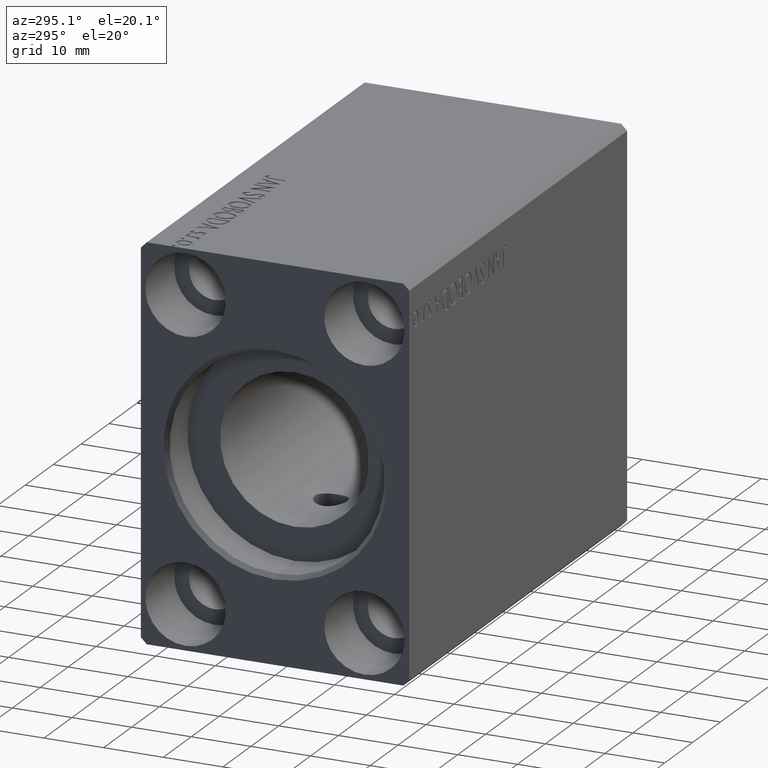
[diagram: clean part render]
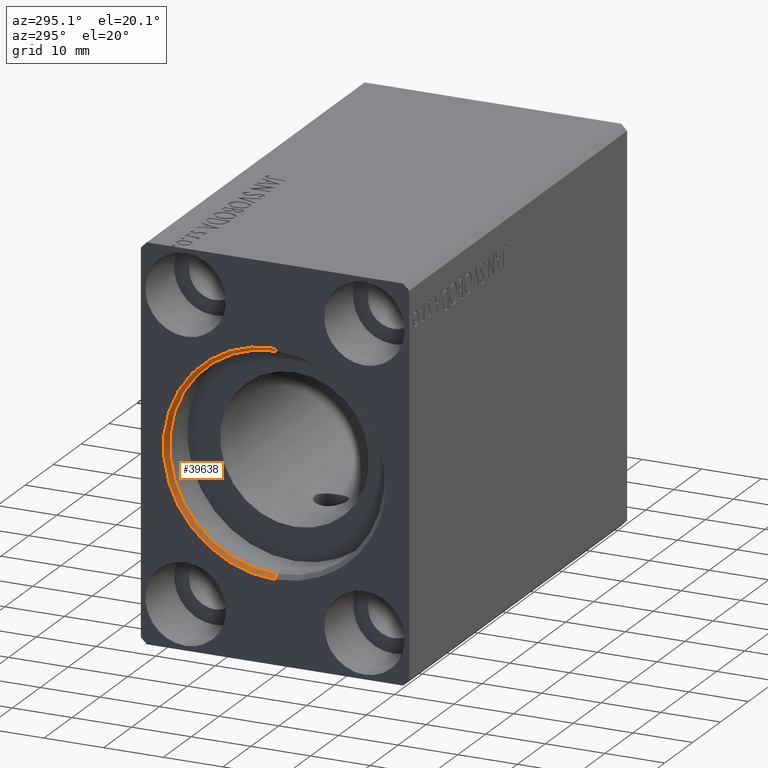
[diagram: same view with one face highlighted and labeled with its STEP entity id]
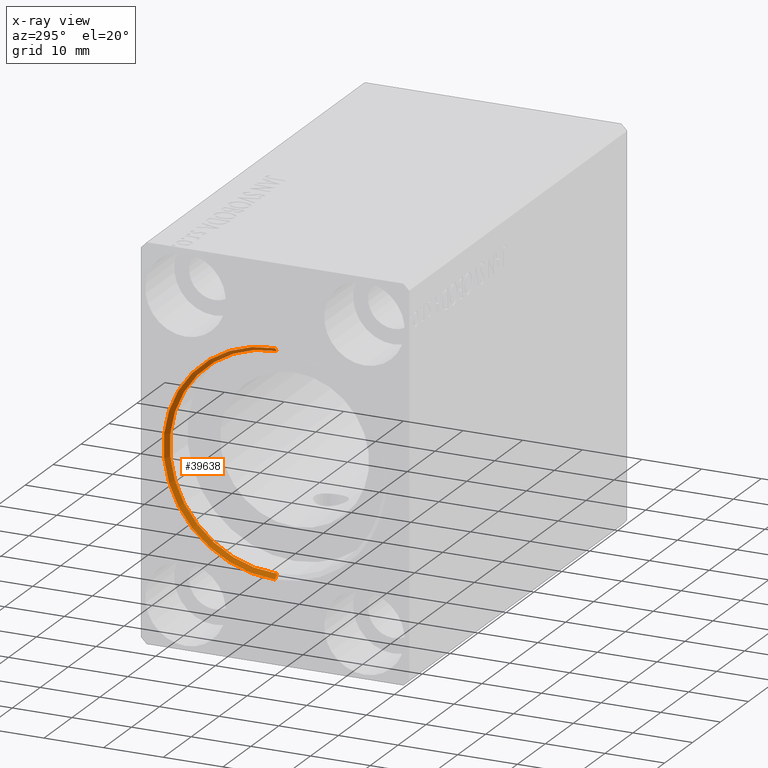
[diagram: x-ray of the same camera — body ghosted, the highlighted face saturated]
A machine part, auxiliary view. The second image highlights one B-rep face of the part: STEP entity #39638.
The next image is the same camera in x-ray: the body ghosted, the highlighted face saturated — about 0% of this face is hidden behind the body in this view.
In plain terms, the highlighted conical surface has half-angle 45 deg.
Its self-contained STEP definition (entity closure, byte-faithful):
#1497 = DIRECTION ( 'NONE',  ( -1.000000000000000000, 0.000000000000000000, 0.000000000000000000 ) ) ;
#3428 = CARTESIAN_POINT ( 'NONE',  ( 0.7000000000000166089, 2.204364238465235428E-15, -18.00000000000000000 ) ) ;
#4664 = CARTESIAN_POINT ( 'NONE',  ( 0.7000000000000166089, 0.000000000000000000, 18.00000000000000000 ) ) ;
#6504 = AXIS2_PLACEMENT_3D ( 'NONE', #34300, #11253, #21596 ) ;
#6747 = DIRECTION ( 'NONE',  ( 0.000000000000000000, 0.000000000000000000, -1.000000000000000000 ) ) ;
#7580 = ORIENTED_EDGE ( 'NONE', *, *, #10994, .F. ) ;
#10994 = EDGE_CURVE ( 'NONE', #26800, #26779, #28211, .T. ) ;
#11005 = AXIS2_PLACEMENT_3D ( 'NONE', #36250, #20335, #6747 ) ;
#11253 = DIRECTION ( 'NONE',  ( 1.000000000000000000, 0.000000000000000000, 0.000000000000000000 ) ) ;
#14763 = CARTESIAN_POINT ( 'NONE',  ( 0.7000000000000166089, 2.204364238465235428E-15, -18.00000000000000000 ) ) ;
#15281 = FACE_OUTER_BOUND ( 'NONE', #18076, .T. ) ;
#17601 = DIRECTION ( 'NONE',  ( -0.7071067811865441310, 0.000000000000000000, 0.7071067811865510144 ) ) ;
#18076 = EDGE_LOOP ( 'NONE', ( #22395, #7580, #21829, #23454 ) ) ;
#20335 = DIRECTION ( 'NONE',  ( -1.000000000000000000, 0.000000000000000000, 0.000000000000000000 ) ) ;
#21596 = DIRECTION ( 'NONE',  ( 0.000000000000000000, 0.000000000000000000, -1.000000000000000000 ) ) ;
#21829 = ORIENTED_EDGE ( 'NONE', *, *, #33637, .T. ) ;
#22395 = ORIENTED_EDGE ( 'NONE', *, *, #38501, .F. ) ;
#22696 = CARTESIAN_POINT ( 'NONE',  ( 0.7000000000000166089, 0.000000000000000000, 18.00000000000000000 ) ) ;
#23075 = VECTOR ( 'NONE', #17601, 999.9999999999998863 ) ;
#23454 = ORIENTED_EDGE ( 'NONE', *, *, #30728, .F. ) ;
#24750 = DIRECTION ( 'NONE',  ( 0.000000000000000000, 0.000000000000000000, 1.000000000000000000 ) ) ;
#24852 = VERTEX_POINT ( 'NONE', #35210 ) ;
#26686 = LINE ( 'NONE', #3428, #39755 ) ;
#26779 = VERTEX_POINT ( 'NONE', #14763 ) ;
#26800 = VERTEX_POINT ( 'NONE', #22696 ) ;
#27928 = LINE ( 'NONE', #4664, #23075 ) ;
#28211 = CIRCLE ( 'NONE', #11005, 18.00000000000000000 ) ;
#30728 = EDGE_CURVE ( 'NONE', #24852, #42433, #41603, .T. ) ;
#32907 = CONICAL_SURFACE ( 'NONE', #35684, 18.00000000000000000, 0.7853981633974532750 ) ;
#33637 = EDGE_CURVE ( 'NONE', #26800, #42433, #27928, .T. ) ;
#34300 = CARTESIAN_POINT ( 'NONE',  ( 0.000000000000000000, 0.000000000000000000, 0.000000000000000000 ) ) ;
#35210 = CARTESIAN_POINT ( 'NONE',  ( 0.000000000000000000, 2.290089514405552871E-15, -18.70000000000002061 ) ) ;
#35684 = AXIS2_PLACEMENT_3D ( 'NONE', #38095, #1497, #24750 ) ;
#36250 = CARTESIAN_POINT ( 'NONE',  ( 0.7000000000000166089, 0.000000000000000000, 0.000000000000000000 ) ) ;
#38095 = CARTESIAN_POINT ( 'NONE',  ( 0.7000000000000166089, 0.000000000000000000, 0.000000000000000000 ) ) ;
#38501 = EDGE_CURVE ( 'NONE', #26779, #24852, #26686, .T. ) ;
#39638 = ADVANCED_FACE ( 'NONE', ( #15281 ), #32907, .F. ) ;
#39755 = VECTOR ( 'NONE', #39814, 999.9999999999998863 ) ;
#39814 = DIRECTION ( 'NONE',  ( -0.7071067811865441310, 8.659560562354978464E-17, -0.7071067811865510144 ) ) ;
#41603 = CIRCLE ( 'NONE', #6504, 18.70000000000002061 ) ;
#42163 = CARTESIAN_POINT ( 'NONE',  ( 0.000000000000000000, 0.000000000000000000, 18.70000000000002061 ) ) ;
#42433 = VERTEX_POINT ( 'NONE', #42163 ) ;